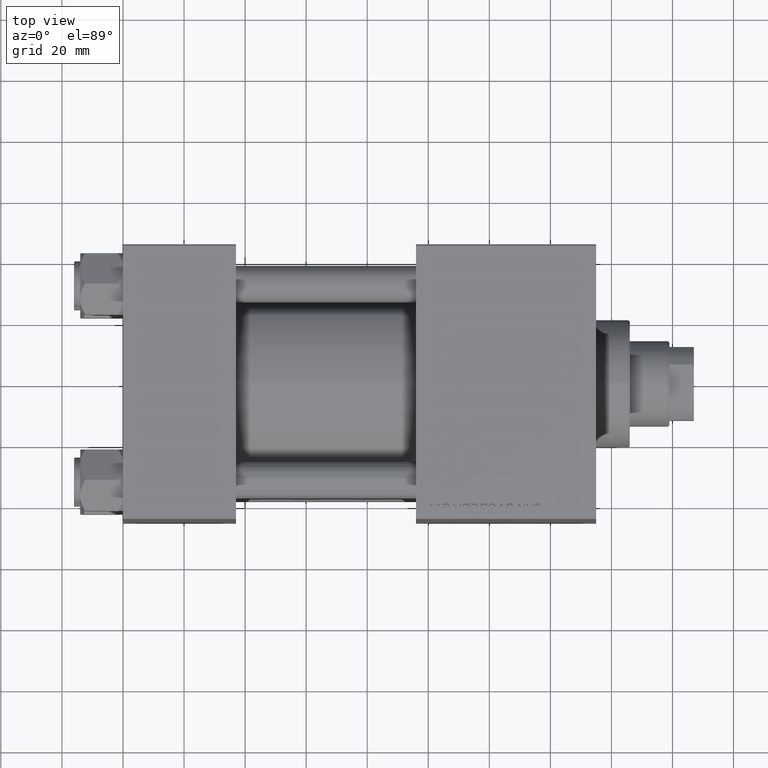
[diagram: clean part render]
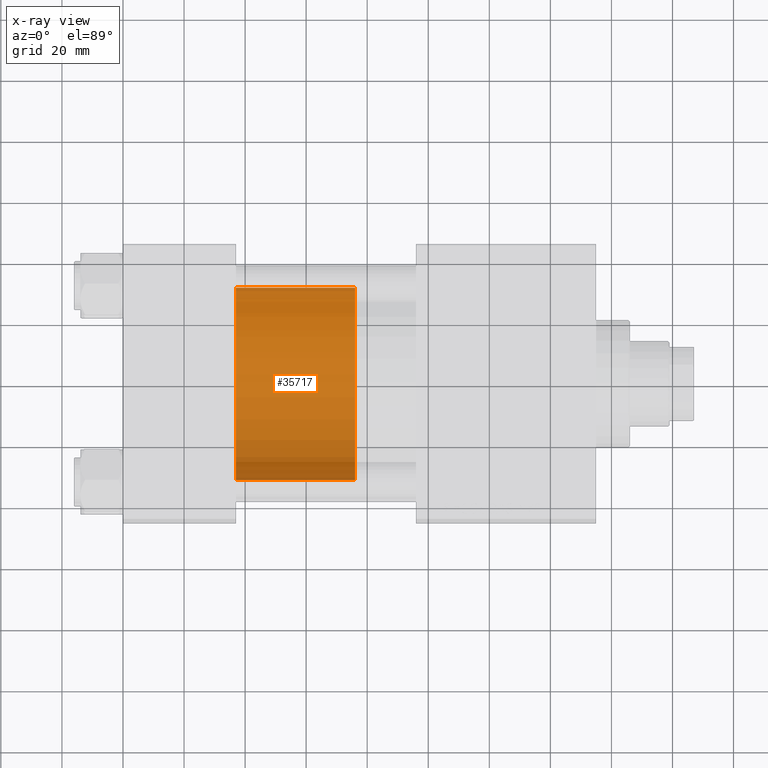
[diagram: x-ray — body ghosted, one internal face saturated and labeled with its STEP entity id]
A machine part, top view, then the same camera in x-ray: the body is ghosted and one INTERNAL B-rep face — a face not visible from any outside direction — is saturated and labeled: STEP entity #35717.
In plain terms, the highlighted cylindrical surface (partial cylindrical patch) has radius 31.5 mm, axis along (-1, 0, 0).
Its self-contained STEP definition (entity closure, byte-faithful):
#102 = VERTEX_POINT ( 'NONE', #12678 ) ;
#189 = EDGE_CURVE ( 'NONE', #33512, #1933, #19032, .T. ) ;
#1913 = VECTOR ( 'NONE', #26419, 1000.000000000000000 ) ;
#1933 = VERTEX_POINT ( 'NONE', #38882 ) ;
#3974 = CARTESIAN_POINT ( 'NONE',  ( -31.50000000000000000, 0.000000000000000000, 39.00000000000000000 ) ) ;
#4323 = CARTESIAN_POINT ( 'NONE',  ( 0.000000000000000000, 0.000000000000000000, 39.00000000000000000 ) ) ;
#8394 = DIRECTION ( 'NONE',  ( 1.000000000000000000, 0.000000000000000000, 0.000000000000000000 ) ) ;
#8899 = AXIS2_PLACEMENT_3D ( 'NONE', #13710, #49388, #21863 ) ;
#10143 = CYLINDRICAL_SURFACE ( 'NONE', #8899, 31.50000000000000000 ) ;
#10635 = LINE ( 'NONE', #36877, #16608 ) ;
#11886 = DIRECTION ( 'NONE',  ( 1.000000000000000000, 0.000000000000000000, 0.000000000000000000 ) ) ;
#12678 = CARTESIAN_POINT ( 'NONE',  ( 31.50000000000000000, 3.857637417314162689E-15, 39.00000000000000000 ) ) ;
#13710 = CARTESIAN_POINT ( 'NONE',  ( 0.000000000000000000, 0.000000000000000000, 39.00000000000000000 ) ) ;
#14204 = DIRECTION ( 'NONE',  ( -0.000000000000000000, -0.000000000000000000, -1.000000000000000000 ) ) ;
#16608 = VECTOR ( 'NONE', #14204, 1000.000000000000000 ) ;
#16699 = ORIENTED_EDGE ( 'NONE', *, *, #189, .F. ) ;
#19032 = LINE ( 'NONE', #3974, #1913 ) ;
#19308 = CARTESIAN_POINT ( 'NONE',  ( 0.000000000000000000, 0.000000000000000000, 0.000000000000000000 ) ) ;
#19879 = DIRECTION ( 'NONE',  ( 0.000000000000000000, 0.000000000000000000, 1.000000000000000000 ) ) ;
#20917 = VERTEX_POINT ( 'NONE', #23807 ) ;
#21649 = EDGE_CURVE ( 'NONE', #102, #33512, #33343, .T. ) ;
#21863 = DIRECTION ( 'NONE',  ( -1.000000000000000000, 0.000000000000000000, 0.000000000000000000 ) ) ;
#23807 = CARTESIAN_POINT ( 'NONE',  ( 31.50000000000000000, 3.857637417314162689E-15, 0.000000000000000000 ) ) ;
#26419 = DIRECTION ( 'NONE',  ( -0.000000000000000000, -0.000000000000000000, -1.000000000000000000 ) ) ;
#30506 = CARTESIAN_POINT ( 'NONE',  ( -31.50000000000000000, 0.000000000000000000, 39.00000000000000000 ) ) ;
#30769 = ORIENTED_EDGE ( 'NONE', *, *, #21649, .F. ) ;
#33343 = CIRCLE ( 'NONE', #47182, 31.50000000000000000 ) ;
#33512 = VERTEX_POINT ( 'NONE', #30506 ) ;
#34183 = AXIS2_PLACEMENT_3D ( 'NONE', #19308, #38651, #11886 ) ;
#35717 = ADVANCED_FACE ( 'NONE', ( #48630 ), #10143, .T. ) ;
#35855 = EDGE_CURVE ( 'NONE', #20917, #1933, #41495, .T. ) ;
#36318 = ORIENTED_EDGE ( 'NONE', *, *, #35855, .T. ) ;
#36877 = CARTESIAN_POINT ( 'NONE',  ( 31.50000000000000000, 3.857637417314162689E-15, 39.00000000000000000 ) ) ;
#38651 = DIRECTION ( 'NONE',  ( 0.000000000000000000, 0.000000000000000000, 1.000000000000000000 ) ) ;
#38882 = CARTESIAN_POINT ( 'NONE',  ( -31.50000000000000000, 0.000000000000000000, 0.000000000000000000 ) ) ;
#41495 = CIRCLE ( 'NONE', #34183, 31.50000000000000000 ) ;
#41841 = EDGE_LOOP ( 'NONE', ( #30769, #47042, #36318, #16699 ) ) ;
#47042 = ORIENTED_EDGE ( 'NONE', *, *, #49817, .T. ) ;
#47182 = AXIS2_PLACEMENT_3D ( 'NONE', #4323, #19879, #8394 ) ;
#48630 = FACE_OUTER_BOUND ( 'NONE', #41841, .T. ) ;
#49388 = DIRECTION ( 'NONE',  ( -0.000000000000000000, -0.000000000000000000, -1.000000000000000000 ) ) ;
#49817 = EDGE_CURVE ( 'NONE', #102, #20917, #10635, .T. ) ;